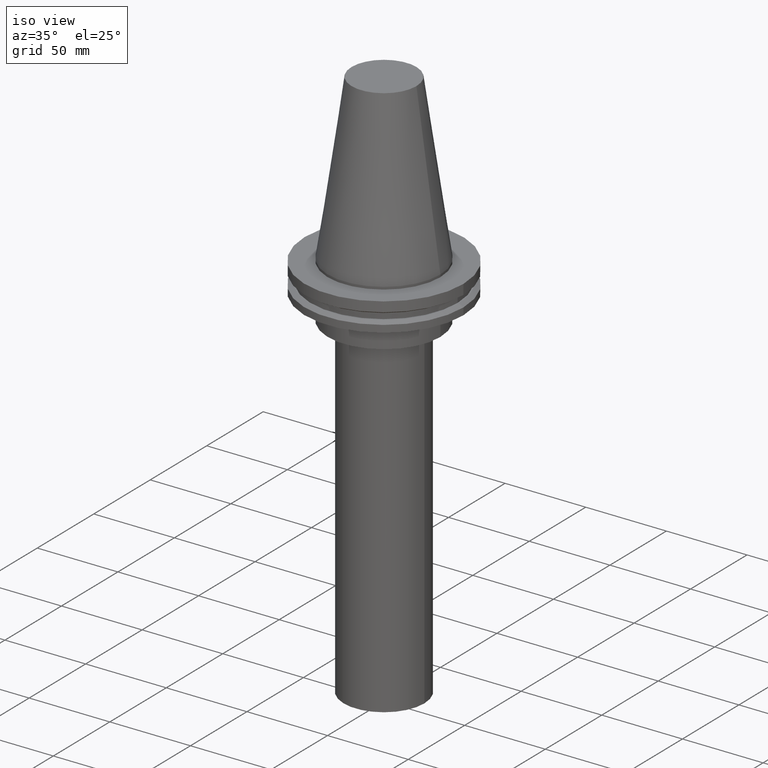
[diagram: clean part render]
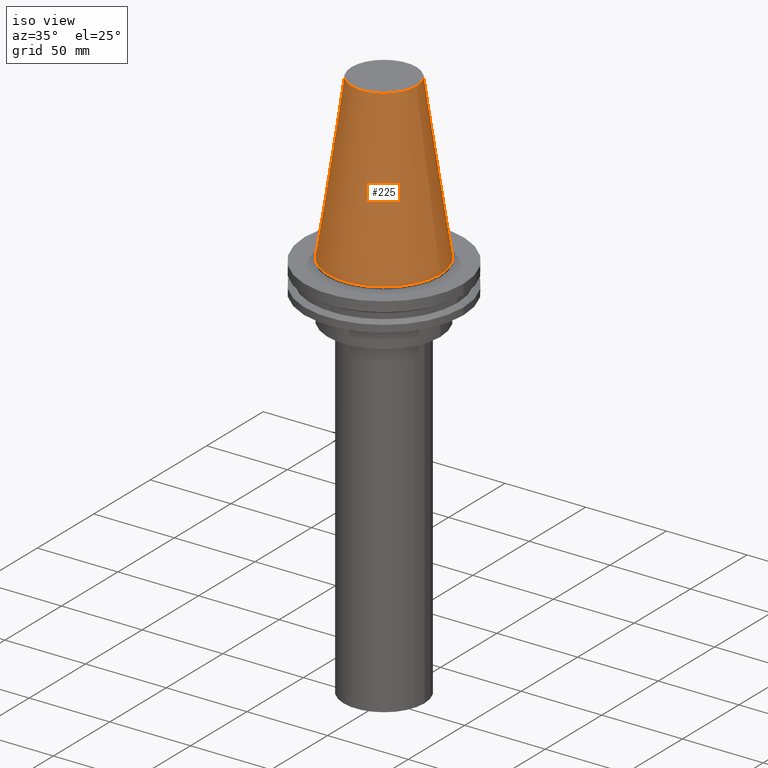
[diagram: same view with one face highlighted and labeled with its STEP entity id]
A machine part, iso view. The second image highlights one B-rep face of the part: STEP entity #225.
In plain terms, the highlighted conical surface has half-angle 8.297 deg.
Its self-contained STEP definition (entity closure, byte-faithful):
#2 = CIRCLE ( 'NONE', #220, 34.92499999999999005 ) ;
#3 = DIRECTION ( 'NONE',  ( 1.000000000000000000, 0.000000000000000000, 0.000000000000000000 ) ) ;
#16 = CARTESIAN_POINT ( 'NONE',  ( 34.92499999999999005, 0.000000000000000000, 0.000000000000000000 ) ) ;
#29 = CARTESIAN_POINT ( 'NONE',  ( 0.000000000000000000, 0.000000000000000000, 0.000000000000000000 ) ) ;
#31 = FACE_OUTER_BOUND ( 'NONE', #326, .T. ) ;
#33 = DIRECTION ( 'NONE',  ( 1.000000000000000000, 0.000000000000000000, 0.000000000000000000 ) ) ;
#46 = CIRCLE ( 'NONE', #204, 20.10819343178871321 ) ;
#69 = CARTESIAN_POINT ( 'NONE',  ( 0.000000000000000000, 0.000000000000000000, 0.000000000000000000 ) ) ;
#105 = DIRECTION ( 'NONE',  ( 0.000000000000000000, 0.000000000000000000, -1.000000000000000000 ) ) ;
#129 = ORIENTED_EDGE ( 'NONE', *, *, #219, .T. ) ;
#136 = EDGE_CURVE ( 'NONE', #293, #293, #46, .T. ) ;
#198 = VERTEX_POINT ( 'NONE', #16 ) ;
#204 = AXIS2_PLACEMENT_3D ( 'NONE', #240, #271, #33 ) ;
#219 = EDGE_CURVE ( 'NONE', #198, #198, #2, .T. ) ;
#220 = AXIS2_PLACEMENT_3D ( 'NONE', #29, #275, #3 ) ;
#225 = ADVANCED_FACE ( 'NONE', ( #310, #31 ), #325, .T. ) ;
#228 = EDGE_LOOP ( 'NONE', ( #269 ) ) ;
#240 = CARTESIAN_POINT ( 'NONE',  ( 0.000000000000000000, 0.000000000000000000, 101.5999999999999801 ) ) ;
#251 = DIRECTION ( 'NONE',  ( -1.000000000000000000, 0.000000000000000000, 0.000000000000000000 ) ) ;
#269 = ORIENTED_EDGE ( 'NONE', *, *, #136, .F. ) ;
#271 = DIRECTION ( 'NONE',  ( -0.000000000000000000, -0.000000000000000000, 1.000000000000000000 ) ) ;
#275 = DIRECTION ( 'NONE',  ( -0.000000000000000000, -0.000000000000000000, 1.000000000000000000 ) ) ;
#293 = VERTEX_POINT ( 'NONE', #393 ) ;
#310 = FACE_BOUND ( 'NONE', #228, .T. ) ;
#325 = CONICAL_SURFACE ( 'NONE', #334, 34.92499999999999005, 0.1448138465474119452 ) ;
#326 = EDGE_LOOP ( 'NONE', ( #129 ) ) ;
#334 = AXIS2_PLACEMENT_3D ( 'NONE', #69, #105, #251 ) ;
#393 = CARTESIAN_POINT ( 'NONE',  ( 20.10819343178871321, 0.000000000000000000, 101.5999999999999801 ) ) ;